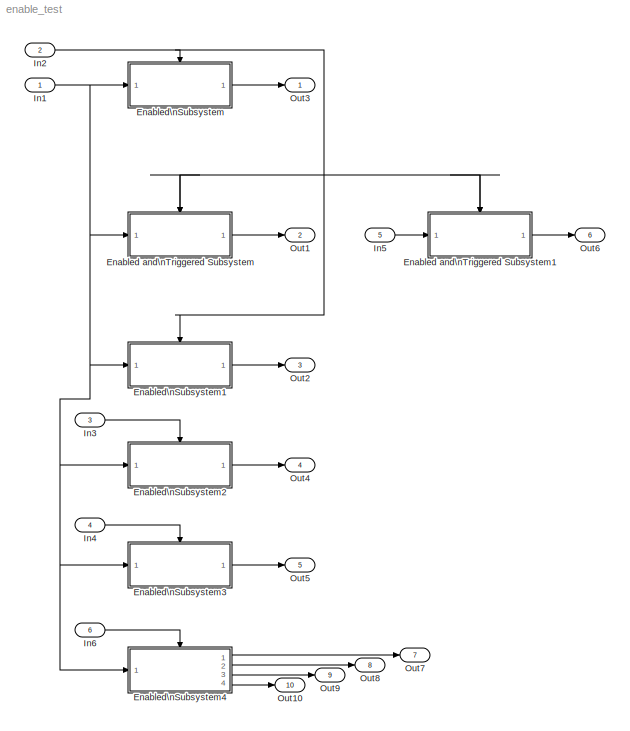
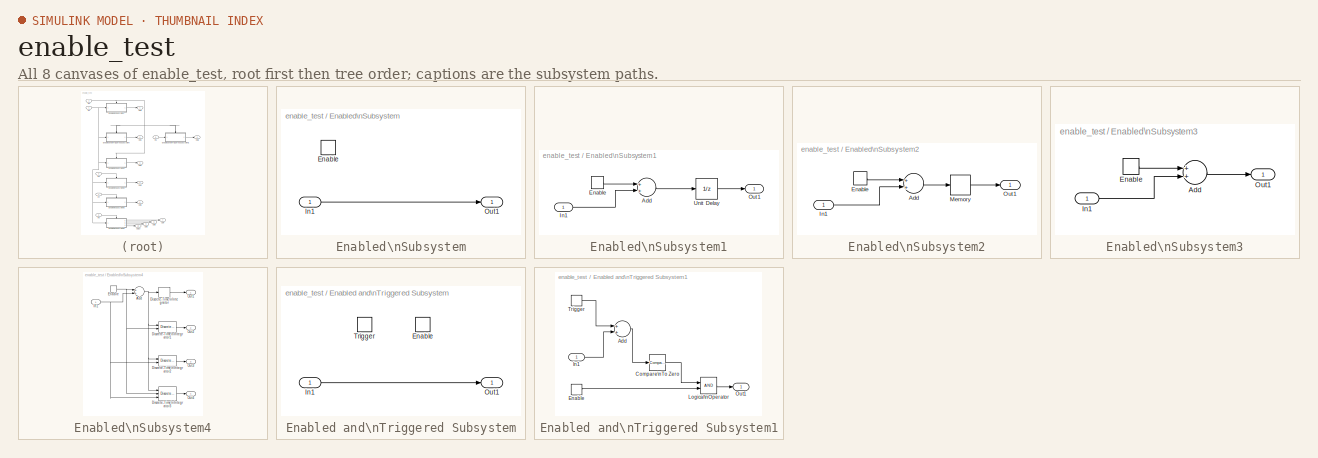
[diagram: thumbnail index - all 8 canvases of the model, root first then tree order]
MODEL enable_test
KIND model
BLOCK [SubSystem] Enabled and\nTriggered Subsystem
  Ports = [1, 1, 1, 1]
  RequestExecContextInheritance = off
  SID = 354
  TreatAsAtomicUnit = on
  Variant = off
BLOCK [EnablePort] Enabled and\nTriggered Subsystem/Enable
  Ports = []
  SID = 356
BLOCK [Inport] Enabled and\nTriggered Subsystem/In1
  IconDisplay = Port number
  SID = 355
BLOCK [Outport] Enabled and\nTriggered Subsystem/Out1
  IconDisplay = Port number
  SID = 358
BLOCK [TriggerPort] Enabled and\nTriggered Subsystem/Trigger
  Ports = []
  SID = 357
  StatesWhenEnabling = held
  VariantControl = (inherit)
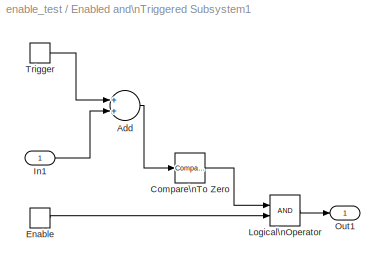
BLOCK [SubSystem] Enabled and\nTriggered Subsystem1
  Ports = [1, 1, 1, 1]
  RequestExecContextInheritance = off
  SID = 380
  TreatAsAtomicUnit = on
  Variant = off
BLOCK [Sum] Enabled and\nTriggered Subsystem1/Add
  InputSameDT = off
  OutDataTypeStr = Inherit: Inherit via internal rule
  Ports = [2, 1]
  SID = 386
  SaturateOnIntegerOverflow = off
BLOCK [Reference] Enabled and\nTriggered Subsystem1/Compare\nTo Zero  REF=simulink/Logic and Bit\nOperations/Compare\nTo Zero
  OutDataTypeStr = boolean
  Ports = [1, 1]
  SID = 388
  SourceBlock = simulink/Logic and Bit\nOperations/Compare\nTo Zero
  SourceProductBaseCode = SL
  SourceProductName = Simulink
  SourceType = Compare To Zero
  ZeroCross = on
  relop = <=
BLOCK [EnablePort] Enabled and\nTriggered Subsystem1/Enable
  Ports = [0, 1]
  SID = 382
  ShowOutputPort = on
BLOCK [Inport] Enabled and\nTriggered Subsystem1/In1
  IconDisplay = Port number
  SID = 381
BLOCK [Logic] Enabled and\nTriggered Subsystem1/Logical\nOperator
  AllPortsSameDT = off
  OutDataTypeStr = boolean
  Ports = [2, 1]
  SID = 387
BLOCK [Outport] Enabled and\nTriggered Subsystem1/Out1
  IconDisplay = Port number
  SID = 384
BLOCK [TriggerPort] Enabled and\nTriggered Subsystem1/Trigger
  Ports = [0, 1]
  SID = 383
  ShowOutputPort = on
  StatesWhenEnabling = held
  TriggerType = falling
  VariantControl = (inherit)
BLOCK [SubSystem] Enabled\nSubsystem
  Ports = [1, 1, 1]
  RequestExecContextInheritance = off
  SID = 350
  TreatAsAtomicUnit = on
  Variant = off
BLOCK [EnablePort] Enabled\nSubsystem/Enable
  Ports = []
  SID = 352
BLOCK [Inport] Enabled\nSubsystem/In1
  IconDisplay = Port number
  SID = 351
BLOCK [Outport] Enabled\nSubsystem/Out1
  IconDisplay = Port number
  SID = 353
BLOCK [SubSystem] Enabled\nSubsystem1
  Ports = [1, 1, 1]
  RequestExecContextInheritance = off
  SID = 360
  TreatAsAtomicUnit = on
  Variant = off
BLOCK [Sum] Enabled\nSubsystem1/Add
  InputSameDT = off
  OutDataTypeStr = Inherit: Inherit via internal rule
  Ports = [2, 1]
  SID = 365
  SaturateOnIntegerOverflow = off
BLOCK [EnablePort] Enabled\nSubsystem1/Enable
  Ports = [0, 1]
  SID = 362
  ShowOutputPort = on
  StatesWhenEnabling = reset
BLOCK [Inport] Enabled\nSubsystem1/In1
  IconDisplay = Port number
  SID = 361
BLOCK [Outport] Enabled\nSubsystem1/Out1
  IconDisplay = Port number
  SID = 363
BLOCK [UnitDelay] Enabled\nSubsystem1/Unit Delay
  InputProcessing = Elements as channels (sample based)
  SID = 390
  SampleTime = -1
BLOCK [SubSystem] Enabled\nSubsystem2
  Ports = [1, 1, 1]
  RequestExecContextInheritance = off
  SID = 366
  TreatAsAtomicUnit = on
  Variant = off
BLOCK [Sum] Enabled\nSubsystem2/Add
  InputSameDT = off
  OutDataTypeStr = Inherit: Inherit via internal rule
  Ports = [2, 1]
  SID = 369
  SaturateOnIntegerOverflow = off
BLOCK [EnablePort] Enabled\nSubsystem2/Enable
  Ports = [0, 1]
  SID = 368
  ShowOutputPort = on
  StatesWhenEnabling = reset
BLOCK [Inport] Enabled\nSubsystem2/In1
  IconDisplay = Port number
  SID = 367
BLOCK [Memory] Enabled\nSubsystem2/Memory
  SID = 391
BLOCK [Outport] Enabled\nSubsystem2/Out1
  IconDisplay = Port number
  SID = 370
BLOCK [SubSystem] Enabled\nSubsystem3
  Ports = [1, 1, 1]
  RequestExecContextInheritance = off
  SID = 372
  TreatAsAtomicUnit = on
  Variant = off
BLOCK [Sum] Enabled\nSubsystem3/Add
  InputSameDT = off
  OutDataTypeStr = Inherit: Inherit via internal rule
  Ports = [2, 1]
  SID = 375
  SaturateOnIntegerOverflow = off
BLOCK [EnablePort] Enabled\nSubsystem3/Enable
  Ports = [0, 1]
  SID = 374
  ShowOutputPort = on
BLOCK [Inport] Enabled\nSubsystem3/In1
  IconDisplay = Port number
  SID = 373
BLOCK [Outport] Enabled\nSubsystem3/Out1
  IconDisplay = Port number
  SID = 376
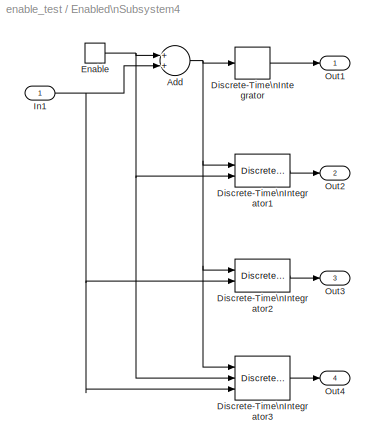
BLOCK [SubSystem] Enabled\nSubsystem4
  Ports = [1, 4, 1]
  RequestExecContextInheritance = off
  SID = 393
  TreatAsAtomicUnit = on
  Variant = off
BLOCK [Sum] Enabled\nSubsystem4/Add
  InputSameDT = off
  OutDataTypeStr = Inherit: Inherit via internal rule
  Ports = [2, 1]
  SID = 396
  SaturateOnIntegerOverflow = off
BLOCK [DiscreteIntegrator] Enabled\nSubsystem4/Discrete-Time\nIntegrator
  ICPrevOutput = DiscIntNeverNeededParam
  ICPrevScaledInput = DiscIntNeverNeededParam
  InitialConditionSetting = State (most efficient)
  Ports = [1, 1]
  SID = 399
BLOCK [DiscreteIntegrator] Enabled\nSubsystem4/Discrete-Time\nIntegrator1
  ExternalReset = falling
  ICPrevOutput = DiscIntNeverNeededParam
  ICPrevScaledInput = DiscIntNeverNeededParam
  InitialConditionSetting = State (most efficient)
  Ports = [2, 1]
  SID = 400
BLOCK [DiscreteIntegrator] Enabled\nSubsystem4/Discrete-Time\nIntegrator2
  ICPrevOutput = DiscIntNeverNeededParam
  ICPrevScaledInput = DiscIntNeverNeededParam
  InitialConditionSetting = State (most efficient)
  InitialConditionSource = external
  Ports = [2, 1]
  SID = 402
BLOCK [DiscreteIntegrator] Enabled\nSubsystem4/Discrete-Time\nIntegrator3
  ExternalReset = level
  ICPrevOutput = DiscIntNeverNeededParam
  ICPrevScaledInput = DiscIntNeverNeededParam
  InitialConditionSetting = State (most efficient)
  InitialConditionSource = external
  Ports = [3, 1]
  SID = 404
BLOCK [EnablePort] Enabled\nSubsystem4/Enable
  Ports = [0, 1]
  SID = 395
  ShowOutputPort = on
  StatesWhenEnabling = reset
BLOCK [Inport] Enabled\nSubsystem4/In1
  IconDisplay = Port number
  SID = 394
BLOCK [Outport] Enabled\nSubsystem4/Out1
  IconDisplay = Port number
  SID = 397
BLOCK [Outport] Enabled\nSubsystem4/Out2
  IconDisplay = Port number
  Port = 2
  SID = 401
BLOCK [Outport] Enabled\nSubsystem4/Out3
  IconDisplay = Port number
  Port = 3
  SID = 403
BLOCK [Outport] Enabled\nSubsystem4/Out4
  IconDisplay = Port number
  Port = 4
  SID = 405
BLOCK [Inport] In1
  IconDisplay = Port number
  SID = 30
BLOCK [Inport] In2
  IconDisplay = Port number
  OutDataTypeStr = boolean
  Port = 2
  SID = 178
BLOCK [Inport] In3
  IconDisplay = Port number
  OutDataTypeStr = int8
  Port = 3
  PortDimensions = 3
  SID = 378
BLOCK [Inport] In4
  IconDisplay = Port number
  OutDataTypeStr = double
  Port = 4
  SID = 379
BLOCK [Inport] In5
  IconDisplay = Port number
  Port = 5
  SID = 389
BLOCK [Inport] In6
  IconDisplay = Port number
  OutDataTypeStr = double
  Port = 6
  SID = 392
BLOCK [Outport] Out1
  IconDisplay = Port number
  Port = 2
  SID = 359
BLOCK [Outport] Out10
  IconDisplay = Port number
  Port = 10
  SID = 408
BLOCK [Outport] Out2
  IconDisplay = Port number
  Port = 3
  SID = 364
BLOCK [Outport] Out3
  IconDisplay = Port number
  SID = 291
BLOCK [Outport] Out4
  IconDisplay = Port number
  Port = 4
  SID = 371
BLOCK [Outport] Out5
  IconDisplay = Port number
  Port = 5
  SID = 377
BLOCK [Outport] Out6
  IconDisplay = Port number
  Port = 6
  SID = 385
BLOCK [Outport] Out7
  IconDisplay = Port number
  Port = 7
  SID = 398
BLOCK [Outport] Out8
  IconDisplay = Port number
  Port = 8
  SID = 406
BLOCK [Outport] Out9
  IconDisplay = Port number
  Port = 9
  SID = 407
LINE Enabled and\nTriggered Subsystem/In1:1 -> Enabled and\nTriggered Subsystem/Out1:1
LINE Enabled and\nTriggered Subsystem1/Add:1 -> Enabled and\nTriggered Subsystem1/Compare\nTo Zero:1
LINE Enabled and\nTriggered Subsystem1/Compare\nTo Zero:1 -> Enabled and\nTriggered Subsystem1/Logical\nOperator:1
LINE Enabled and\nTriggered Subsystem1/Enable:1 -> Enabled and\nTriggered Subsystem1/Logical\nOperator:2
LINE Enabled and\nTriggered Subsystem1/In1:1 -> Enabled and\nTriggered Subsystem1/Add:2
LINE Enabled and\nTriggered Subsystem1/Logical\nOperator:1 -> Enabled and\nTriggered Subsystem1/Out1:1
LINE Enabled and\nTriggered Subsystem1/Trigger:1 -> Enabled and\nTriggered Subsystem1/Add:1
LINE Enabled and\nTriggered Subsystem1:1 -> Out6:1
LINE Enabled and\nTriggered Subsystem:1 -> Out1:1
LINE Enabled\nSubsystem/In1:1 -> Enabled\nSubsystem/Out1:1
LINE Enabled\nSubsystem1/Add:1 -> Enabled\nSubsystem1/Unit Delay:1
LINE Enabled\nSubsystem1/Enable:1 -> Enabled\nSubsystem1/Add:1
LINE Enabled\nSubsystem1/In1:1 -> Enabled\nSubsystem1/Add:2
LINE Enabled\nSubsystem1/Unit Delay:1 -> Enabled\nSubsystem1/Out1:1
LINE Enabled\nSubsystem1:1 -> Out2:1
LINE Enabled\nSubsystem2/Add:1 -> Enabled\nSubsystem2/Memory:1
LINE Enabled\nSubsystem2/Enable:1 -> Enabled\nSubsystem2/Add:1
LINE Enabled\nSubsystem2/In1:1 -> Enabled\nSubsystem2/Add:2
LINE Enabled\nSubsystem2/Memory:1 -> Enabled\nSubsystem2/Out1:1
LINE Enabled\nSubsystem2:1 -> Out4:1
LINE Enabled\nSubsystem3/Add:1 -> Enabled\nSubsystem3/Out1:1
LINE Enabled\nSubsystem3/Enable:1 -> Enabled\nSubsystem3/Add:1
LINE Enabled\nSubsystem3/In1:1 -> Enabled\nSubsystem3/Add:2
LINE Enabled\nSubsystem3:1 -> Out5:1
NET Enabled\nSubsystem4/Add:1 -> Enabled\nSubsystem4/Discrete-Time\nIntegrator1:1, Enabled\nSubsystem4/Discrete-Time\nIntegrator2:1, Enabled\nSubsystem4/Discrete-Time\nIntegrator3:1, Enabled\nSubsystem4/Discrete-Time\nIntegrator:1
LINE Enabled\nSubsystem4/Discrete-Time\nIntegrator1:1 -> Enabled\nSubsystem4/Out2:1
LINE Enabled\nSubsystem4/Discrete-Time\nIntegrator2:1 -> Enabled\nSubsystem4/Out3:1
LINE Enabled\nSubsystem4/Discrete-Time\nIntegrator3:1 -> Enabled\nSubsystem4/Out4:1
LINE Enabled\nSubsystem4/Discrete-Time\nIntegrator:1 -> Enabled\nSubsystem4/Out1:1
NET Enabled\nSubsystem4/Enable:1 -> Enabled\nSubsystem4/Add:1, Enabled\nSubsystem4/Discrete-Time\nIntegrator1:2, Enabled\nSubsystem4/Discrete-Time\nIntegrator3:2
NET Enabled\nSubsystem4/In1:1 -> Enabled\nSubsystem4/Add:2, Enabled\nSubsystem4/Discrete-Time\nIntegrator2:2, Enabled\nSubsystem4/Discrete-Time\nIntegrator3:3
LINE Enabled\nSubsystem4:1 -> Out7:1
LINE Enabled\nSubsystem4:2 -> Out8:1
LINE Enabled\nSubsystem4:3 -> Out9:1
LINE Enabled\nSubsystem4:4 -> Out10:1
LINE Enabled\nSubsystem:1 -> Out3:1
NET In1:1 -> Enabled and\nTriggered Subsystem:1, Enabled\nSubsystem1:1, Enabled\nSubsystem2:1, Enabled\nSubsystem3:1, Enabled\nSubsystem4:1, Enabled\nSubsystem:1
NET In2:1 -> Enabled and\nTriggered Subsystem1:enable, Enabled and\nTriggered Subsystem1:trigger, Enabled and\nTriggered Subsystem:enable, Enabled and\nTriggered Subsystem:trigger, Enabled\nSubsystem1:enable, Enabled\nSubsystem:enable
LINE In3:1 -> Enabled\nSubsystem2:enable
LINE In4:1 -> Enabled\nSubsystem3:enable
LINE In5:1 -> Enabled and\nTriggered Subsystem1:1
LINE In6:1 -> Enabled\nSubsystem4:enable
note: NET lines group one-source signal fan-out (src -> all destinations, sorted); 1:1 wires keep LINE
